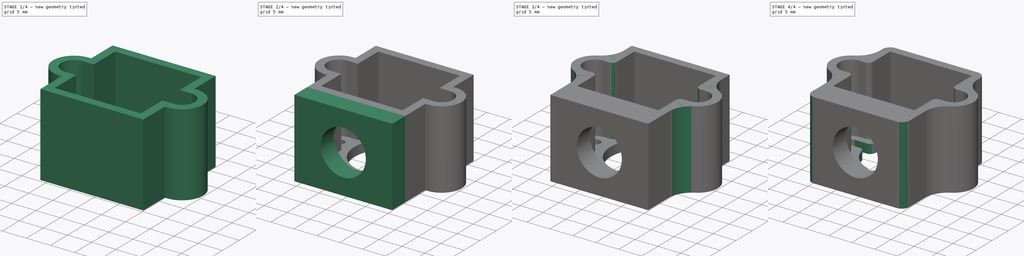
[diagram: build sequence overview — one tinted view per stage of 4, left to right]
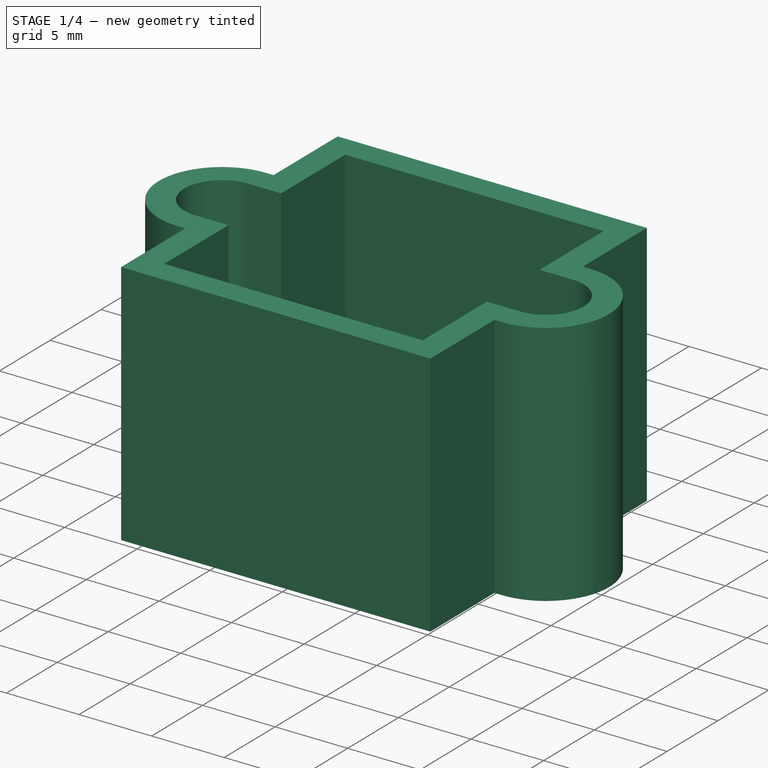
[diagram: stage 1 of 4 — iso view after this stage's code; geometry added in this stage tinted green]
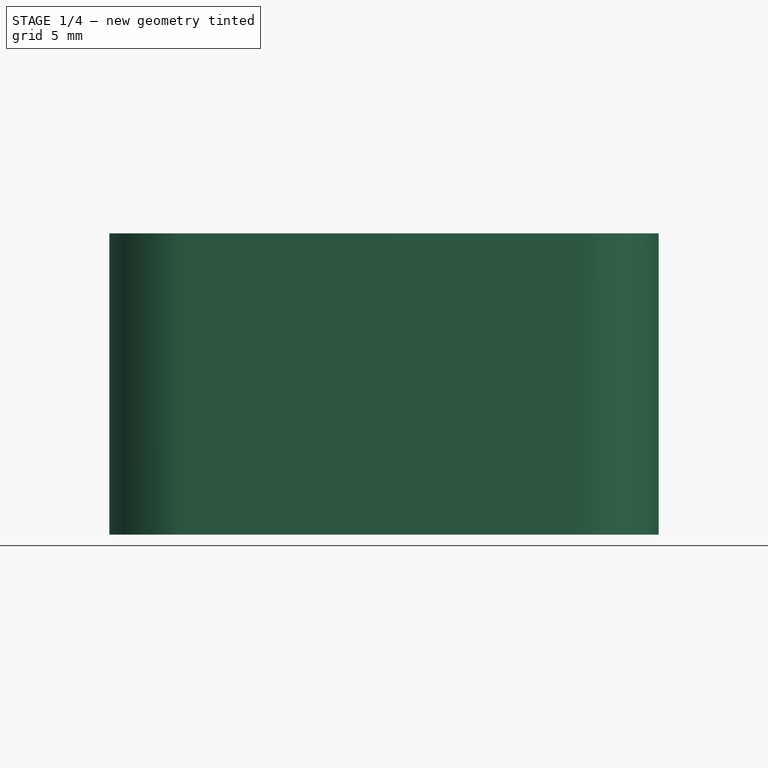
[diagram: stage 1 of 4 — front view after this stage's code; geometry added in this stage tinted green]
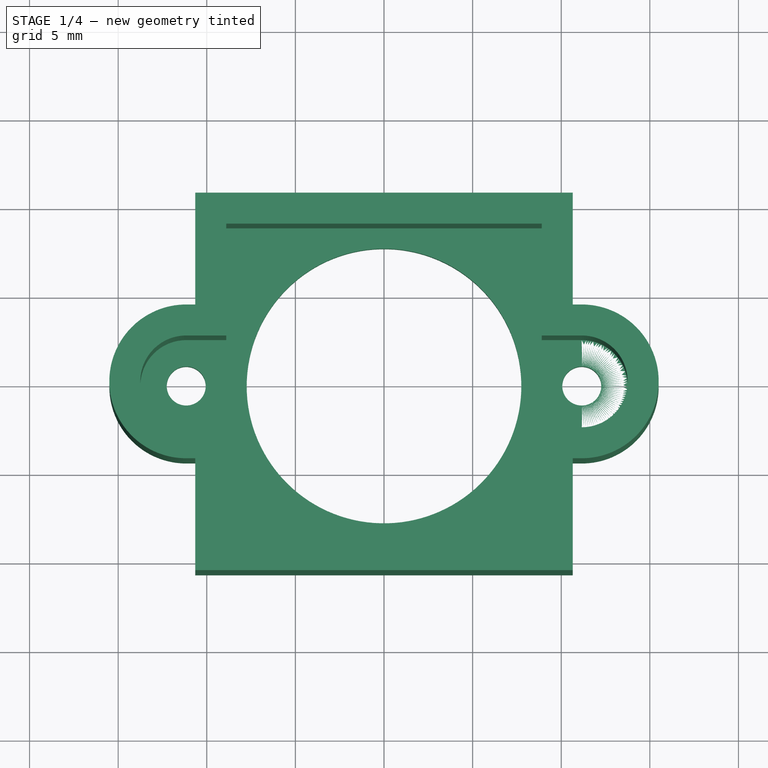
[diagram: stage 1 of 4 — top view after this stage's code; geometry added in this stage tinted green]
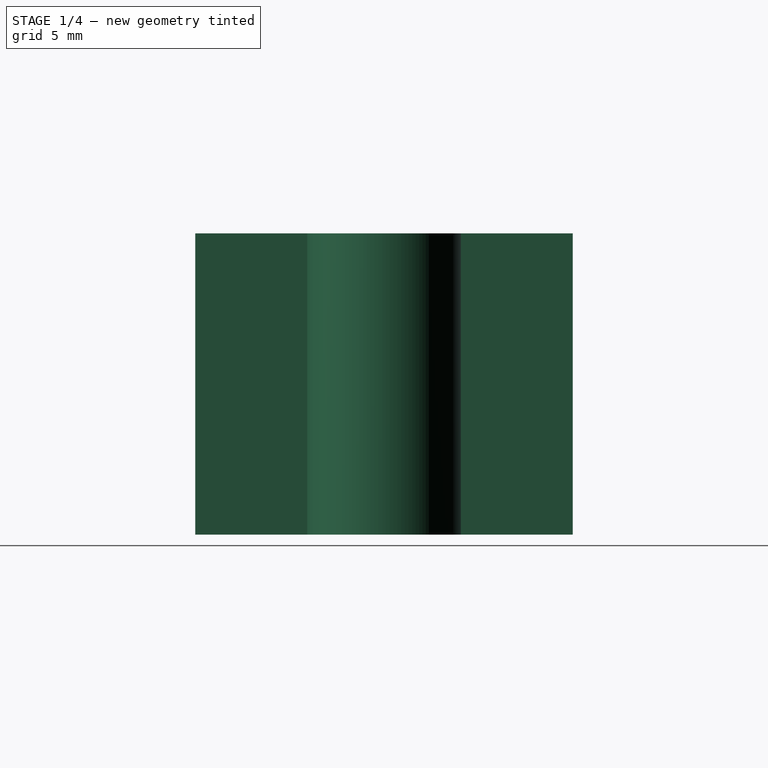
[diagram: stage 1 of 4 — right view after this stage's code; geometry added in this stage tinted green]
FCSTD DOCUMENT  (FreeCAD 0.20R29603 (Git))
Label: shield
License: All rights reserved
LicenseURL: http://en.wikipedia.org/wiki/All_rights_reserved
objects: Sketcher::SketchObject×6, PartDesign::Pocket×4, PartDesign::Fillet×4, PartDesign::Pad×3, PartDesign::Body×1
note: 29 computed .brp shape members not serialized (recipe doc carries the construction recipe); baked Part::Feature solids carry a one-line shape summary decoded from their .brp

FEATURE [Sketcher::SketchObject] Sketch
  FullyConstrained = true
  MapMode = 5
  Support = -> [XY_Plane]
  sketch-geometry (20):
    g0: LineSegment StartX=-8.65 StartY=8.65 StartZ=0 EndX=8.65 EndY=8.65 EndZ=0
    g1: LineSegment StartX=8.65 StartY=8.65 StartZ=0 EndX=8.65 EndY=-8.65 EndZ=0
    g2: LineSegment StartX=8.65 StartY=-8.65 StartZ=0 EndX=-8.65 EndY=-8.65 EndZ=0
    g3: LineSegment StartX=-8.65 StartY=-8.65 StartZ=0 EndX=-8.65 EndY=8.65 EndZ=0
    g4: ArcOfCircle CenterX=-11.16 CenterY=0 CenterZ=0 NormalX=0 NormalY=0 NormalZ=1 AngleXU=0 Radius=2.34 StartAngle=1.5708 EndAngle=4.71239
    g5: ArcOfCircle CenterX=11.16 CenterY=0 CenterZ=0 NormalX=0 NormalY=0 NormalZ=1 AngleXU=0 Radius=2.34 StartAngle=4.71239 EndAngle=7.85398
    g6: LineSegment StartX=-11.16 StartY=-2.34 StartZ=0 EndX=11.16 EndY=-2.34 EndZ=0
    g7: LineSegment StartX=11.16 StartY=2.34 StartZ=0 EndX=-11.16 EndY=2.34 EndZ=0
    g8: GeomPoint X=-13.5 Y=0 Z=0
    g9: LineSegment StartX=-11.16 StartY=2.34 StartZ=0 EndX=-8.65 EndY=2.34 EndZ=0
    g10: LineSegment StartX=-8.65 StartY=2.34 StartZ=0 EndX=-8.65 EndY=8.65 EndZ=0
    g11: LineSegment StartX=-11.16 StartY=-2.34 StartZ=0 EndX=-8.65 EndY=-2.34 EndZ=0
    g12: LineSegment StartX=-8.65 StartY=-2.34 StartZ=0 EndX=-8.65 EndY=-8.65 EndZ=0
    g13: LineSegment StartX=8.65 StartY=-8.65 StartZ=0 EndX=8.65 EndY=-2.34 EndZ=0
    g14: LineSegment StartX=8.65 StartY=-2.34 StartZ=0 EndX=11.16 EndY=-2.34 EndZ=0
    g15: LineSegment StartX=11.16 StartY=2.34 StartZ=0 EndX=8.65 EndY=2.34 EndZ=0
    g16: LineSegment StartX=8.65 StartY=2.34 StartZ=0 EndX=8.65 EndY=8.65 EndZ=0
    g17: Circle CenterX=0 CenterY=0 CenterZ=0 NormalX=0 NormalY=0 NormalZ=1 AngleXU=0 Radius=7.75
    g18: Circle CenterX=-11.16 CenterY=0 CenterZ=0 NormalX=0 NormalY=0 NormalZ=1 AngleXU=0 Radius=1.1
    g19: Circle CenterX=11.16 CenterY=0 CenterZ=0 NormalX=0 NormalY=0 NormalZ=1 AngleXU=0 Radius=1.1
  constraints (47):
    c: Coincident(g0,g1)
    c: Coincident(g1,g2)
    c: Coincident(g2,g3)
    c: Coincident(g3,g0)
    c: Horizontal(g2)
    c: Vertical(g1)
    c: Tangent(g4,g6) = -1.5708
    c: Tangent(g6,g5) = -1.5708
    c: Tangent(g5,g7) = -1.5708
    c: Tangent(g7,g4) = -1.5708
    c: Equal(g4,g5)
    c: PointOnObject(g4,g-1)
    c: DistanceY(g3,g3) = 17.3
    c: Equal(g0,g3)
    c: Symmetric(g0,g0,g-2)
    c: Symmetric(g2,g0,g-1)
    c: DistanceY(g4,g4) = 4.68
    c: PointOnObject(g8,g-1)
    c: PointOnObject(g8,g4)
    c: DistanceX(g8,g0) = 4.85
    c: Symmetric(g4,g5,g-2)
    c: Coincident(g9,g4)
    c: Coincident(g10,g9)
    c: Coincident(g11,g12)
    c: Coincident(g13,g14)
    c: Coincident(g15,g16)
    c: Coincident(g16,g0)
    c: Coincident(g15,g5)
    c: PointOnObject(g15,g7)
    c: PointOnObject(g15,g1)
    c: Coincident(g13,g2)
    c: Coincident(g14,g5)
    c: PointOnObject(g13,g1)
    c: PointOnObject(g13,g6)
    c: PointOnObject(g9,g3)
    c: PointOnObject(g9,g7)
    c: Coincident(g10,g0)
    c: Coincident(g11,g4)
    c: Coincident(g12,g2)
    c: PointOnObject(g11,g3)
    c: PointOnObject(g11,g6)
    c: Coincident(g17,g-1)
    c: Diameter(g17) = 15.5
    c: Coincident(g18,g4)
    c: Coincident(g19,g5)
    c: Equal(g19,g18)
    c: Diameter(g18) = 2.2
FEATURE [PartDesign::Pad] Pad
  Direction = (0,0,1)
  Length = 2
  Length2 = 10
  Profile = -> Sketch
  ReferenceAxis = -> Sketch [N_Axis]
  Type = 0
FEATURE [Sketcher::SketchObject] Sketch001
  ExternalGeometry = -> [Pad]
  FullyConstrained = true
  MapMode = 5
  Placement = pos=(0,0,0) rot=(1,0,0;3.14159rad)
  Support = -> [Pad]
  sketch-geometry (30):
    g0: LineSegment StartX=-10.65 StartY=10.65 StartZ=0 EndX=10.65 EndY=10.65 EndZ=0
    g1: LineSegment StartX=10.65 StartY=10.65 StartZ=0 EndX=10.65 EndY=-10.65 EndZ=0
    g2: LineSegment StartX=10.65 StartY=-10.65 StartZ=0 EndX=-10.65 EndY=-10.65 EndZ=0
    g3: LineSegment StartX=-10.65 StartY=-10.65 StartZ=0 EndX=-10.65 EndY=10.65 EndZ=0
    g4: ArcOfCircle CenterX=-11.16 CenterY=0 CenterZ=0 NormalX=0 NormalY=0 NormalZ=1 AngleXU=0 Radius=4.34 StartAngle=1.5708 EndAngle=4.71239
    g5: ArcOfCircle CenterX=11.16 CenterY=-2e-16 CenterZ=0 NormalX=0 NormalY=0 NormalZ=1 AngleXU=0 Radius=4.34 StartAngle=4.71239 EndAngle=7.85398
    g6: LineSegment StartX=-11.16 StartY=-4.34 StartZ=0 EndX=11.16 EndY=-4.34 EndZ=0
    g7: LineSegment StartX=11.16 StartY=4.34 StartZ=0 EndX=-11.16 EndY=4.34 EndZ=0
    g8: LineSegment StartX=-11.16 StartY=4.34 StartZ=0 EndX=-10.65 EndY=4.34 EndZ=0
    g9: LineSegment StartX=-10.65 StartY=4.34 StartZ=0 EndX=-10.65 EndY=10.65 EndZ=0
    g10: LineSegment StartX=-11.16 StartY=-4.34 StartZ=0 EndX=-10.65 EndY=-4.34 EndZ=0
    g11: LineSegment StartX=-10.65 StartY=-4.34 StartZ=0 EndX=-10.65 EndY=-10.65 EndZ=0
    g12: LineSegment StartX=10.65 StartY=-10.65 StartZ=0 EndX=10.65 EndY=-4.34 EndZ=0
    g13: LineSegment StartX=10.65 StartY=-4.34 StartZ=0 EndX=11.16 EndY=-4.34 EndZ=0
    g14: LineSegment StartX=11.16 StartY=4.34 StartZ=0 EndX=10.65 EndY=4.34 EndZ=0
    g15: LineSegment StartX=10.65 StartY=4.34 StartZ=0 EndX=10.65 EndY=10.65 EndZ=0
    g16: GeomPoint X=-13.5 Y=0 Z=0
    g17: GeomPoint X=-15.5 Y=0 Z=0
    g18: LineSegment StartX=8.65 StartY=8.65 StartZ=0 EndX=-8.65 EndY=8.65 EndZ=0
    g19: LineSegment StartX=-8.65 StartY=8.65 StartZ=0 EndX=-8.65 EndY=2.34 EndZ=0
    g20: LineSegment StartX=-8.65 StartY=-8.65 StartZ=0 EndX=8.65 EndY=-8.65 EndZ=0
    g21: LineSegment StartX=8.65 StartY=-8.65 StartZ=0 EndX=8.65 EndY=-2.34 EndZ=0
    g22: ArcOfCircle CenterX=-11.16 CenterY=0 CenterZ=0 NormalX=0 NormalY=0 NormalZ=1 AngleXU=0 Radius=2.34 StartAngle=1.5708 EndAngle=4.71239
    g23: LineSegment StartX=-11.16 StartY=-2.34 StartZ=0 EndX=-8.65 EndY=-2.34 EndZ=0
    g24: LineSegment StartX=11.16 StartY=2.34 StartZ=0 EndX=8.65 EndY=2.34 EndZ=0
    g25: LineSegment StartX=-8.65 StartY=2.34 StartZ=0 EndX=-11.16 EndY=2.34 EndZ=0
    g26: LineSegment StartX=-8.65 StartY=-2.34 StartZ=0 EndX=-8.65 EndY=-8.65 EndZ=0
    g27: LineSegment StartX=8.65 StartY=2.34 StartZ=0 EndX=8.65 EndY=8.65 EndZ=0
    g28: LineSegment StartX=8.65 StartY=-2.34 StartZ=0 EndX=11.16 EndY=-2.34 EndZ=0
    g29: ArcOfCircle CenterX=11.16 CenterY=-2e-16 CenterZ=0 NormalX=0 NormalY=0 NormalZ=1 AngleXU=0 Radius=2.34 StartAngle=4.71238 EndAngle=7.85399
  constraints (70):
    c: Coincident(g0,g1)
    c: Coincident(g1,g2)
    c: Coincident(g2,g3)
    c: Coincident(g3,g0)
    c: Horizontal(g2)
    c: Vertical(g3)
    c: Tangent(g4,g6) = -1.5708
    c: Tangent(g6,g5) = -1.5708
    c: Tangent(g5,g7) = -1.5708
    c: Tangent(g7,g4) = -1.5708
    c: Equal(g4,g5)
    c: Symmetric(g0,g0,g-2)
    c: Symmetric(g1,g0,g-1)
    c: Symmetric(g4,g5,g-2)
    c: Coincident(g8,g9)
    c: Coincident(g10,g11)
    c: Coincident(g12,g13)
    c: Coincident(g14,g15)
    c: Coincident(g13,g5)
    c: Coincident(g12,g2)
    c: PointOnObject(g12,g6)
    c: PointOnObject(g12,g1)
    c: Coincident(g14,g5)
    c: Coincident(g15,g0)
    c: PointOnObject(g14,g7)
    c: PointOnObject(g14,g1)
    c: Coincident(g8,g4)
    c: Coincident(g9,g0)
    c: PointOnObject(g8,g3)
    c: PointOnObject(g8,g7)
    c: Coincident(g10,g4)
    c: Coincident(g11,g2)
    c: PointOnObject(g10,g6)
    c: PointOnObject(g10,g3)
    c: Equal(g0,g3)
    c: DistanceY(g-5,g0) = 2
    c: PointOnObject(g17,g4)
    c: PointOnObject(g17,g-1)
    c: PointOnObject(g16,g-3)
    c: PointOnObject(g16,g-1)
    c: DistanceX(g17,g16) = 2
    c: Coincident(g-3,g4)
    c: Coincident(g18,g19)
    c: Coincident(g26,g20)
    c: Coincident(g20,g21)
    c: Coincident(g27,g18)
    c: Horizontal(g18)
    c: Horizontal(g20)
    c: Vertical(g19)
    c: Vertical(g21)
    c: Coincident(g18,g-5)
    c: Coincident(g26,g-6)
    c: Tangent(g22,g23) = -1.5708
    c: Coincident(g25,g22) = -1.5708
    c: Coincident(g4,g22)
    c: Equal(g22,g-3)
    c: Coincident(g19,g25)
    c: Coincident(g26,g23)
    c: Coincident(g27,g24)
    c: Coincident(g23,g-7)
    c: Coincident(g19,g-8)
    c: Coincident(g21,g-10)
    c: Coincident(g24,g-9)
    c: Horizontal(g25)
    c: Coincident(g24,g-4)
    c: Coincident(g28,g-4)
    c: Coincident(g28,g21)
    c: Coincident(g29,g28)
    c: Coincident(g29,g24)
    c: Equal(g-4,g29)
FEATURE [PartDesign::Pad] Pad001
  BaseFeature = -> Pad
  Direction = (0,0,-1)
  Length = 17
  Length2 = 10
  Profile = -> Sketch001
  ReferenceAxis = -> Sketch001 [N_Axis]
  Reversed = true
  Type = 0
FEATURE [Sketcher::SketchObject] Sketch002
  ExternalGeometry = -> [Pad001]
  FullyConstrained = true
  MapMode = 5
  Placement = pos=(0,0,17) rot=(0,0,1;0rad)
  Support = -> [Pad001]
  sketch-geometry (16):
    g0: LineSegment StartX=8.9 StartY=8.9 StartZ=0 EndX=-8.9 EndY=8.9 EndZ=0
    g1: LineSegment StartX=-8.9 StartY=8.9 StartZ=0 EndX=-8.9 EndY=-8.9 EndZ=0
    g2: LineSegment StartX=-8.9 StartY=-8.9 StartZ=0 EndX=8.9 EndY=-8.9 EndZ=0
    g3: LineSegment StartX=8.9 StartY=-8.9 StartZ=0 EndX=8.9 EndY=8.9 EndZ=0
    g4: LineSegment StartX=-8.9 StartY=8.9 StartZ=0 EndX=-8.9 EndY=2.59 EndZ=0
    g5: LineSegment StartX=-8.9 StartY=2.59 StartZ=0 EndX=-11.16 EndY=2.59 EndZ=0
    g6: LineSegment StartX=-8.9 StartY=-8.9 StartZ=0 EndX=-8.9 EndY=-2.59 EndZ=0
    g7: LineSegment StartX=-8.9 StartY=-2.59 StartZ=0 EndX=-11.16 EndY=-2.59 EndZ=0
    g8: LineSegment StartX=8.9 StartY=-8.9 StartZ=0 EndX=8.9 EndY=-2.59 EndZ=0
    g9: LineSegment StartX=8.9 StartY=-2.59 StartZ=0 EndX=11.16 EndY=-2.59 EndZ=0
    g10: LineSegment StartX=8.9 StartY=8.9 StartZ=0 EndX=8.9 EndY=2.59 EndZ=0
    g11: LineSegment StartX=8.9 StartY=2.59 StartZ=0 EndX=11.16 EndY=2.59 EndZ=0
    g12: ArcOfCircle CenterX=11.16 CenterY=-1e-16 CenterZ=0 NormalX=0 NormalY=0 NormalZ=1 AngleXU=0 Radius=2.59 StartAngle=4.71239 EndAngle=7.85398
    g13: ArcOfCircle CenterX=-11.16 CenterY=0 CenterZ=0 NormalX=0 NormalY=0 NormalZ=1 AngleXU=0 Radius=2.59 StartAngle=1.5708 EndAngle=4.71239
    g14: GeomPoint X=-13.75 Y=0 Z=0
    g15: GeomPoint X=-13.5 Y=0 Z=0
  constraints (41):
    c: Coincident(g0,g1)
    c: Coincident(g1,g2)
    c: Coincident(g2,g3)
    c: Coincident(g3,g0)
    c: Horizontal(g2)
    c: Vertical(g3)
    c: Symmetric(g0,g0,g-2)
    c: Symmetric(g1,g0,g-1)
    c: DistanceY(g-3,g0) = 0.25
    c: Equal(g1,g0)
    c: Coincident(g0,g4)
    c: Coincident(g4,g5)
    c: Coincident(g2,g6)
    c: Coincident(g6,g7)
    c: Coincident(g2,g8)
    c: Coincident(g8,g9)
    c: Coincident(g0,g10)
    c: Coincident(g11,g10)
    c: PointOnObject(g4,g1)
    c: PointOnObject(g10,g3)
    c: PointOnObject(g8,g3)
    c: PointOnObject(g6,g1)
    c: Equal(g6,g8)
    c: Equal(g8,g4)
    c: Equal(g4,g10)
    c: Equal(g11,g5)
    c: Equal(g5,g7)
    c: Equal(g7,g9)
    c: Horizontal(g11)
    c: Horizontal(g9)
    c: Horizontal(g5)
    c: Coincident(g13,g7)
    c: Coincident(g9,g12)
    c: Tangent(g12,g11) = 1.5708
    c: Tangent(g13,g5) = -1.5708
    c: Coincident(g13,g-7)
    c: PointOnObject(g14,g-1)
    c: PointOnObject(g14,g13)
    c: PointOnObject(g15,g-8)
    c: PointOnObject(g15,g-1)
    c: DistanceX(g14,g15) = 0.25
FEATURE [PartDesign::Pocket] Pocket
  BaseFeature = -> Pad001
  Direction = (0,0,-1)
  Length = 0
  Length2 = 5
  Profile = -> Sketch002
  ReferenceAxis = -> Sketch002 [N_Axis]
  Type = 3
  UpToFace = -> Pad001 [Face3]
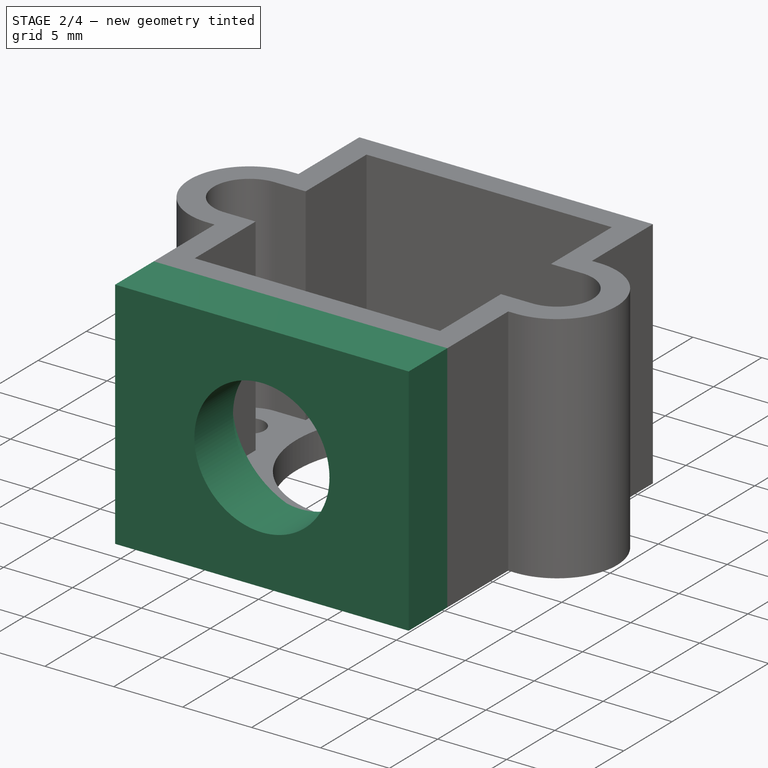
[diagram: stage 2 of 4 — iso view after this stage's code; geometry added in this stage tinted green]
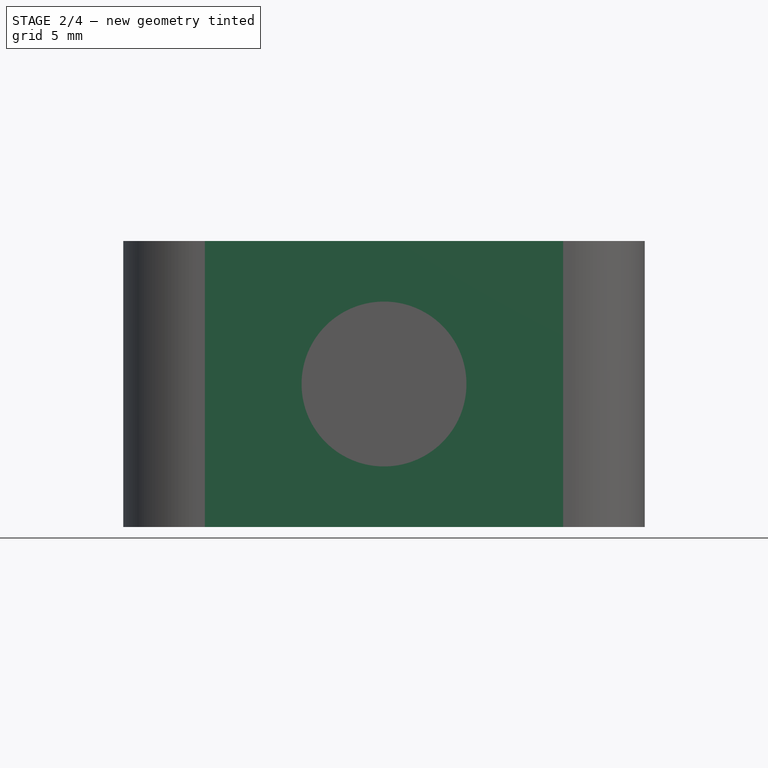
[diagram: stage 2 of 4 — front view after this stage's code; geometry added in this stage tinted green]
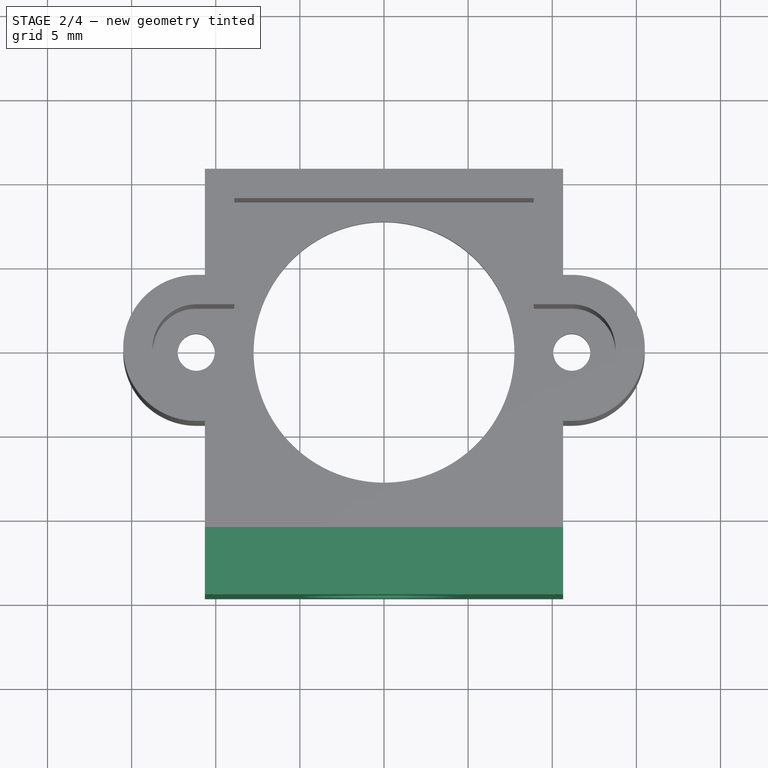
[diagram: stage 2 of 4 — top view after this stage's code; geometry added in this stage tinted green]
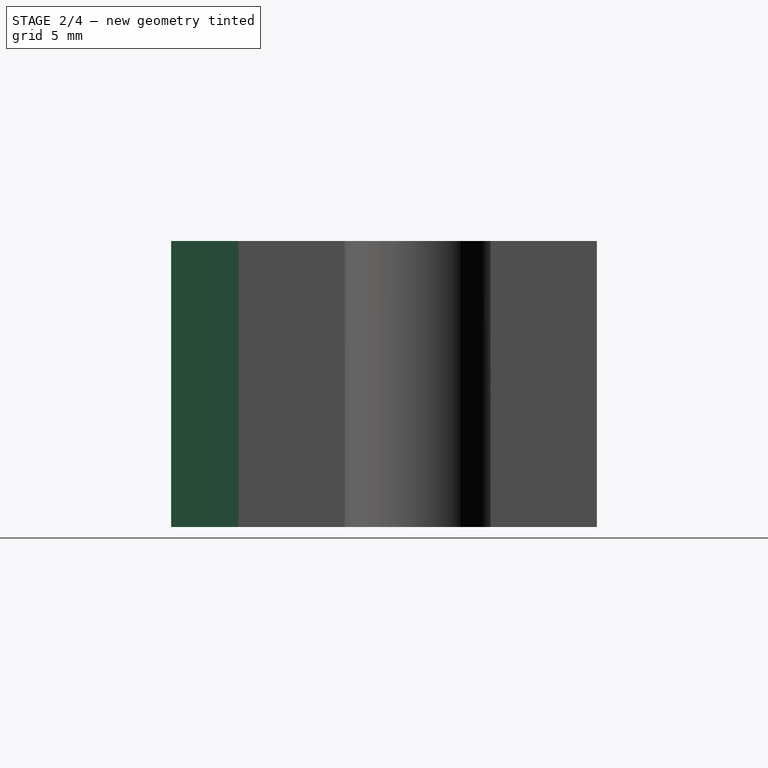
[diagram: stage 2 of 4 — right view after this stage's code; geometry added in this stage tinted green]
FEATURE [PartDesign::Pad] Pad002
  BaseFeature = -> Pocket
  Direction = (0,-1,0)
  Length = 4
  Length2 = 10
  Profile = -> Pocket [Face25]
  Type = 0
FEATURE [Sketcher::SketchObject] Sketch004
  ExternalGeometry = -> [Pad002]
  FullyConstrained = true
  MapMode = 5
  Placement = pos=(0,-8.9,0) rot=(0,0.707107,0.707107;3.14159rad)
  Support = -> [Pad002]
  sketch-geometry (3):
    g0: Circle CenterX=-4e-16 CenterY=8.5 CenterZ=0 NormalX=0 NormalY=0 NormalZ=1 AngleXU=0 Radius=4.9
    g1: LineSegment StartX=10.65 StartY=17 StartZ=0 EndX=-10.65 EndY=0 EndZ=0
    g2: LineSegment StartX=-10.65 StartY=17 StartZ=0 EndX=10.65 EndY=0 EndZ=0
  constraints (7):
    c: Coincident(g1,g-3)
    c: Coincident(g1,g-4)
    c: Coincident(g2,g-3)
    c: Coincident(g2,g-4)
    c: PointOnObject(g0,g1)
    c: PointOnObject(g0,g2)
    c: Diameter(g0) = 9.8
FEATURE [PartDesign::Pocket] Pocket001
  BaseFeature = -> Pad002
  Direction = (0,-1,2e-16)
  Length = 0
  Length2 = 5
  Profile = -> Sketch004
  ReferenceAxis = -> Sketch004 [N_Axis]
  Type = 3
  UpToFace = -> Pad002 [Face36]
FEATURE [Sketcher::SketchObject] Sketch005
  ExternalGeometry = -> [Pocket001]
  FullyConstrained = true
  MapMode = 5
  Placement = pos=(0,-8.9,0) rot=(0,0.707107,0.707107;3.14159rad)
  Support = -> [Pocket001]
  sketch-geometry (1):
    g0: Circle CenterX=-4e-16 CenterY=8.5 CenterZ=0 NormalX=0 NormalY=0 NormalZ=1 AngleXU=0 Radius=6.2
  constraints (2):
    c: Coincident(g0,g-3)
    c: Diameter(g0) = 12.4
FEATURE [PartDesign::Pocket] Pocket002
  BaseFeature = -> Pocket001
  Direction = (0,-1,2e-16)
  Length = 1.75
  Length2 = 5
  Offset = 1.45
  Profile = -> Sketch005
  ReferenceAxis = -> Sketch005 [N_Axis]
  Type = 0
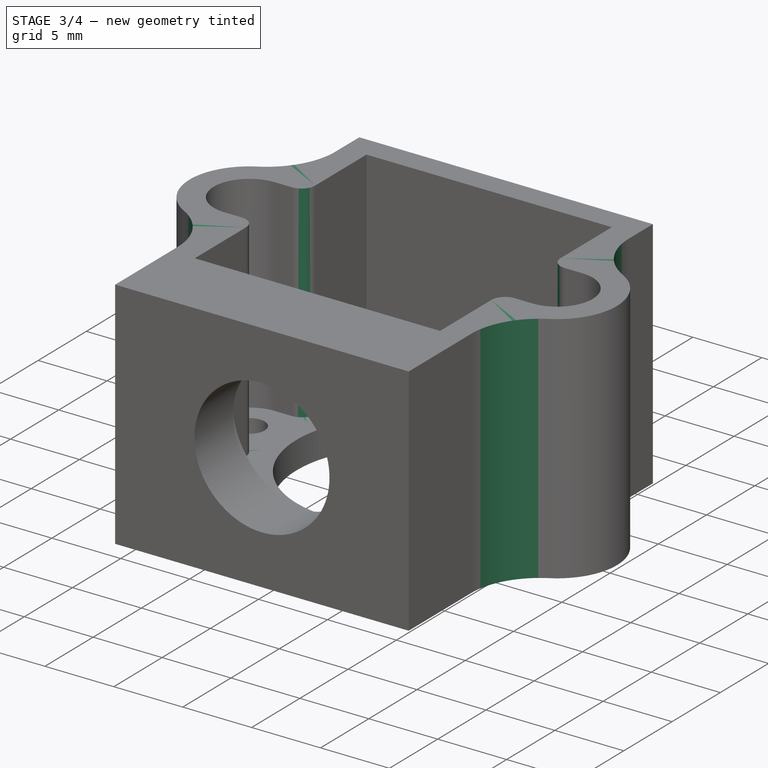
[diagram: stage 3 of 4 — iso view after this stage's code; geometry added in this stage tinted green]
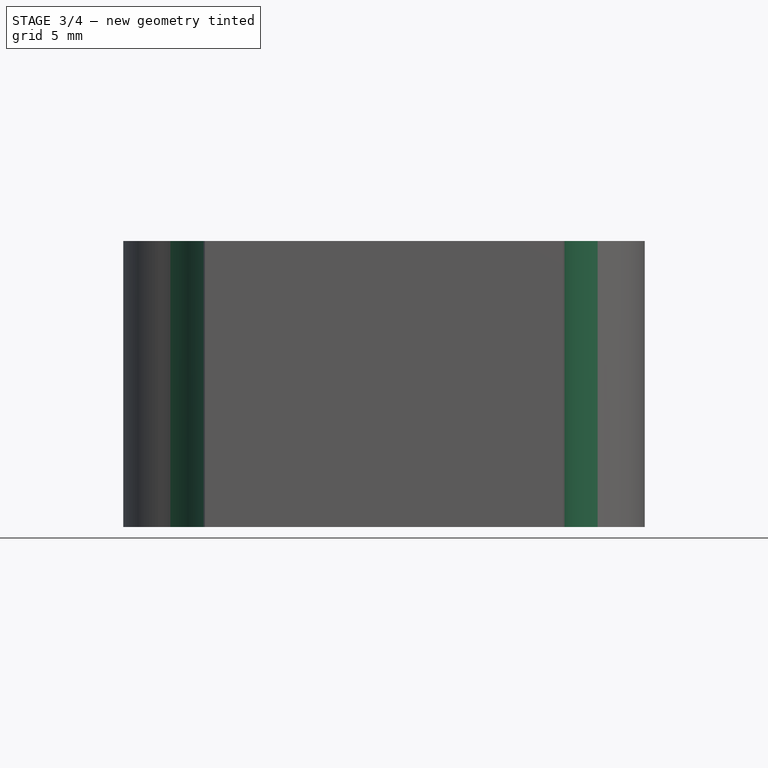
[diagram: stage 3 of 4 — front view after this stage's code; geometry added in this stage tinted green]
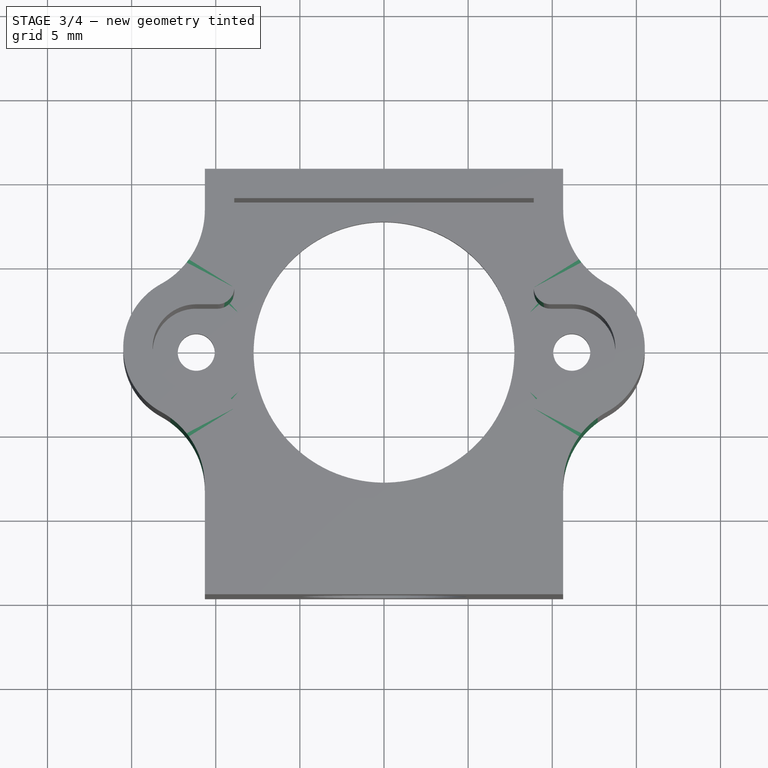
[diagram: stage 3 of 4 — top view after this stage's code; geometry added in this stage tinted green]
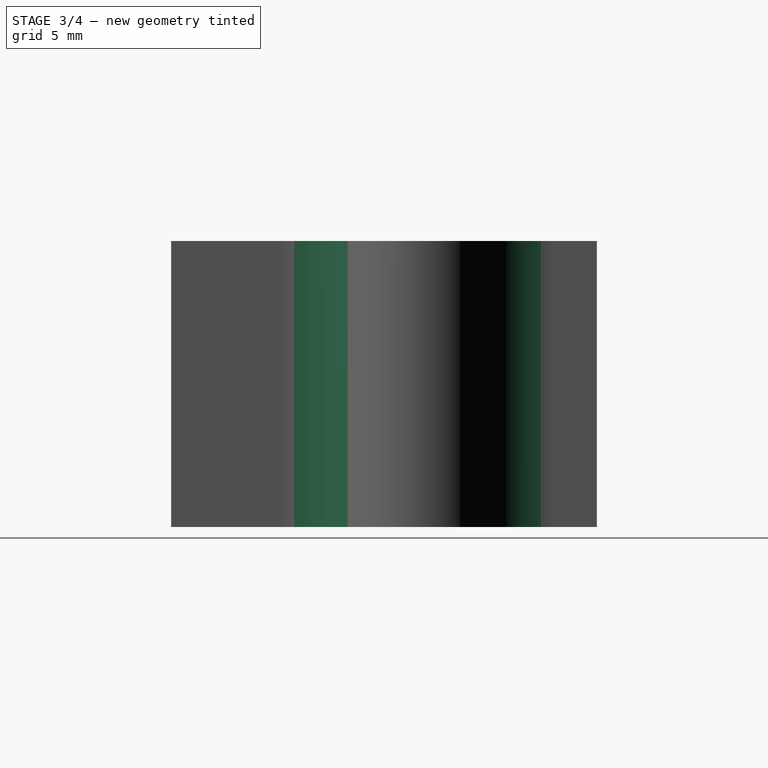
[diagram: stage 3 of 4 — right view after this stage's code; geometry added in this stage tinted green]
FEATURE [PartDesign::Fillet] Fillet
  Base = -> Pocket002 [Edge52,Edge40,Edge50,Edge38]
  BaseFeature = -> Pocket002
  Radius = 1
  SupportTransform = false
  UseAllEdges = false
FEATURE [PartDesign::Fillet] Fillet001
  Base = -> Fillet [Edge86,Edge85,Edge92,Edge88,Edge108,Edge106,Edge99,Edge104]
  BaseFeature = -> Fillet
  Radius = 5
  SupportTransform = false
  UseAllEdges = false
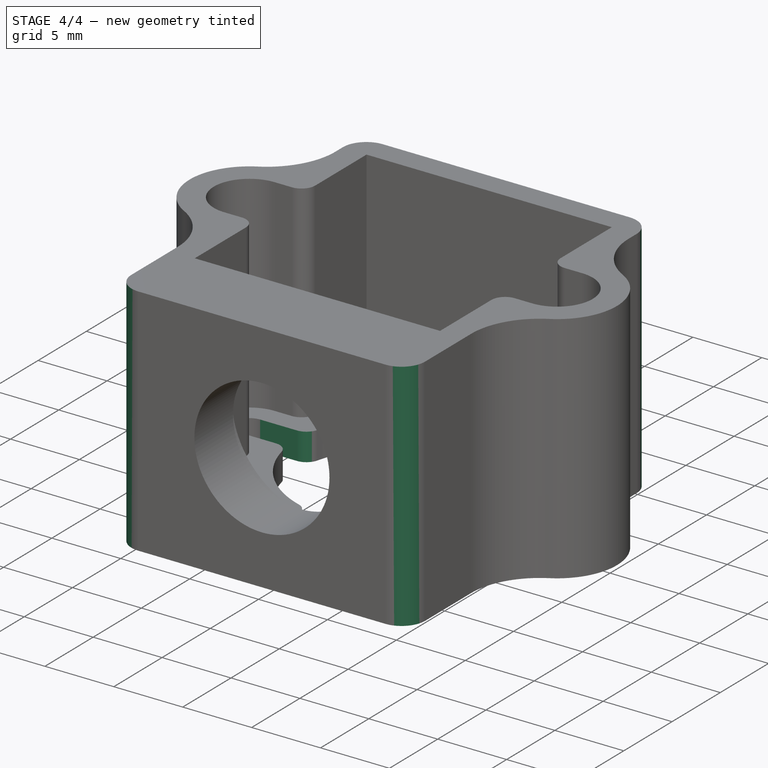
[diagram: stage 4 of 4 — iso view after this stage's code; geometry added in this stage tinted green]
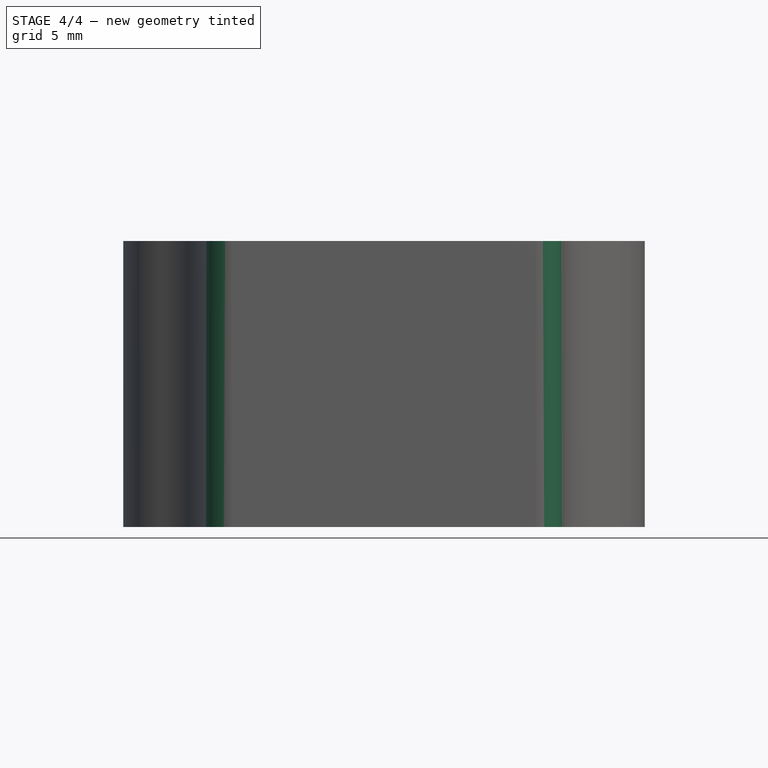
[diagram: stage 4 of 4 — front view after this stage's code; geometry added in this stage tinted green]
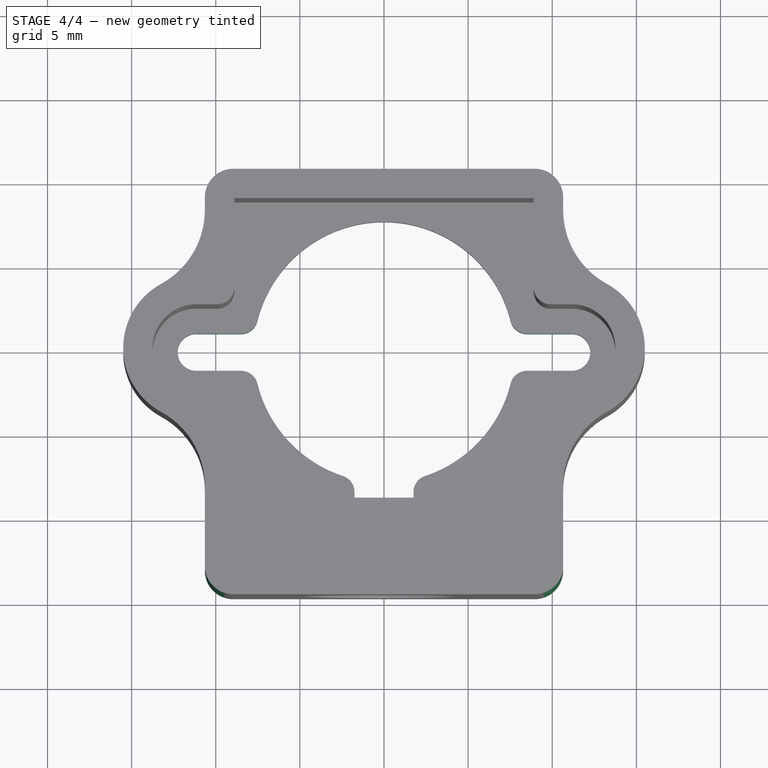
[diagram: stage 4 of 4 — top view after this stage's code; geometry added in this stage tinted green]
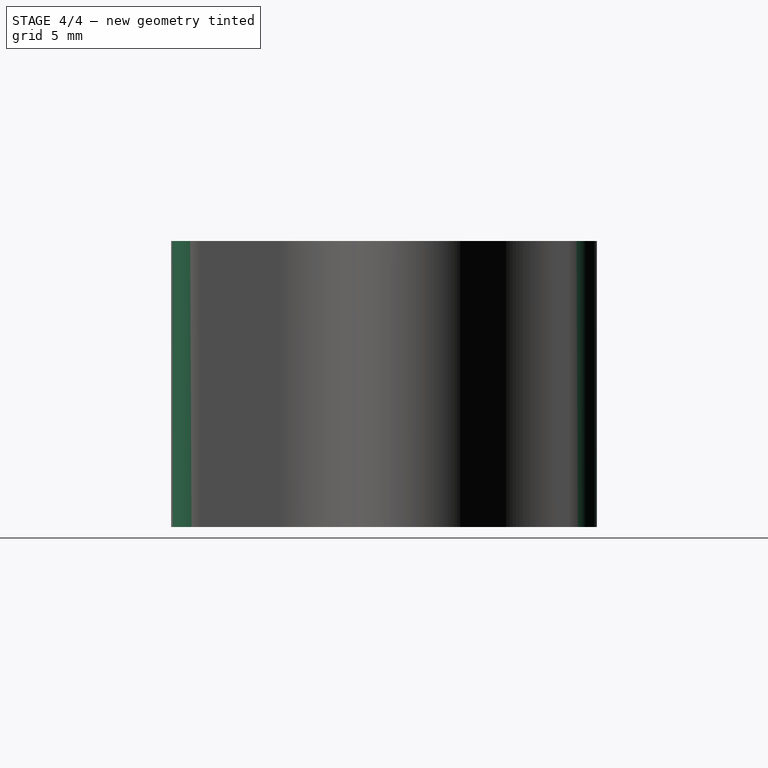
[diagram: stage 4 of 4 — right view after this stage's code; geometry added in this stage tinted green]
FEATURE [PartDesign::Fillet] Fillet002
  Base = -> Fillet001 [Edge39,Edge43,Edge102,Edge104]
  BaseFeature = -> Fillet001
  Radius = 1.7
  SupportTransform = false
  UseAllEdges = false
FEATURE [Sketcher::SketchObject] Sketch006
  ExternalGeometry = -> [Fillet002]
  FullyConstrained = true
  MapMode = 5
  Placement = pos=(0,0,0) rot=(1,0,0;3.14159rad)
  Support = -> [Fillet002]
  sketch-geometry (8):
    g0: LineSegment StartX=-1.75 StartY=8.9 StartZ=0 EndX=1.75 EndY=8.9 EndZ=0
    g1: LineSegment StartX=1.75 StartY=8.9 StartZ=0 EndX=1.75 EndY=7.54983 EndZ=0
    g2: LineSegment StartX=1.75 StartY=7.54983 StartZ=0 EndX=-1.75 EndY=7.54983 EndZ=0
    g3: LineSegment StartX=-1.75 StartY=7.54983 StartZ=0 EndX=-1.75 EndY=8.9 EndZ=0
    g4: ArcOfCircle CenterX=-11.16 CenterY=0 CenterZ=0 NormalX=0 NormalY=0 NormalZ=1 AngleXU=0 Radius=1.1 StartAngle=1.5708 EndAngle=4.71239
    g5: ArcOfCircle CenterX=11.16 CenterY=0 CenterZ=0 NormalX=0 NormalY=0 NormalZ=1 AngleXU=0 Radius=1.1 StartAngle=4.71239 EndAngle=7.85398
    g6: LineSegment StartX=-11.16 StartY=-1.1 StartZ=0 EndX=11.16 EndY=-1.1 EndZ=0
    g7: LineSegment StartX=11.16 StartY=1.1 StartZ=0 EndX=-11.16 EndY=1.1 EndZ=0
  constraints (19):
    c: Coincident(g0,g1)
    c: Coincident(g1,g2)
    c: Coincident(g2,g3)
    c: Horizontal(g2)
    c: Vertical(g1)
    c: Vertical(g3)
    c: Symmetric(g0,g0,g-2)
    c: PointOnObject(g1,g-3)
    c: Coincident(g3,g0)
    c: DistanceX(g2,g2) = 3.5
    c: PointOnObject(g0,g-4)
    c: Tangent(g4,g6) = -1.5708
    c: Tangent(g6,g5) = -1.5708
    c: Tangent(g5,g7) = -1.5708
    c: Tangent(g7,g4) = -1.5708
    c: Equal(g4,g5)
    c: Coincident(g4,g-6)
    c: Coincident(g5,g-5)
    c: Equal(g5,g-5)
FEATURE [PartDesign::Pocket] Pocket003
  BaseFeature = -> Fillet002
  Direction = (0,0,1)
  Length = 5
  Length2 = 5
  Profile = -> Sketch006
  ReferenceAxis = -> Sketch006 [N_Axis]
  Type = 1
FEATURE [PartDesign::Fillet] Fillet003
  Base = -> Pocket003 [Edge186,Edge182,Edge187,Edge190,Edge166,Edge168]
  BaseFeature = -> Pocket003
  Radius = 1
  SupportTransform = false
  UseAllEdges = false
FEATURE [PartDesign::Body] Body
  Group = -> [Sketch,Pad,Sketch001,Pad001,Sketch002,Pocket,Pad002,Sketch004,Pocket001,Sketch005,Pocket002,Fillet,Fillet001,Fillet002,Sketch006,Pocket003,Fillet003]
  Origin = -> Origin
  Tip = -> Fillet003
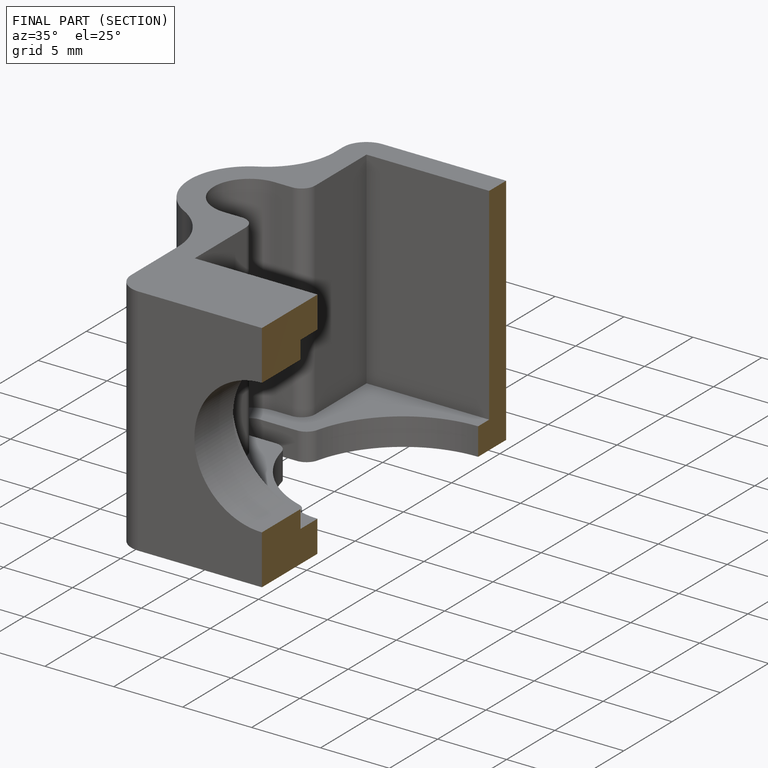
[diagram: finished part — half-section view (interior)]
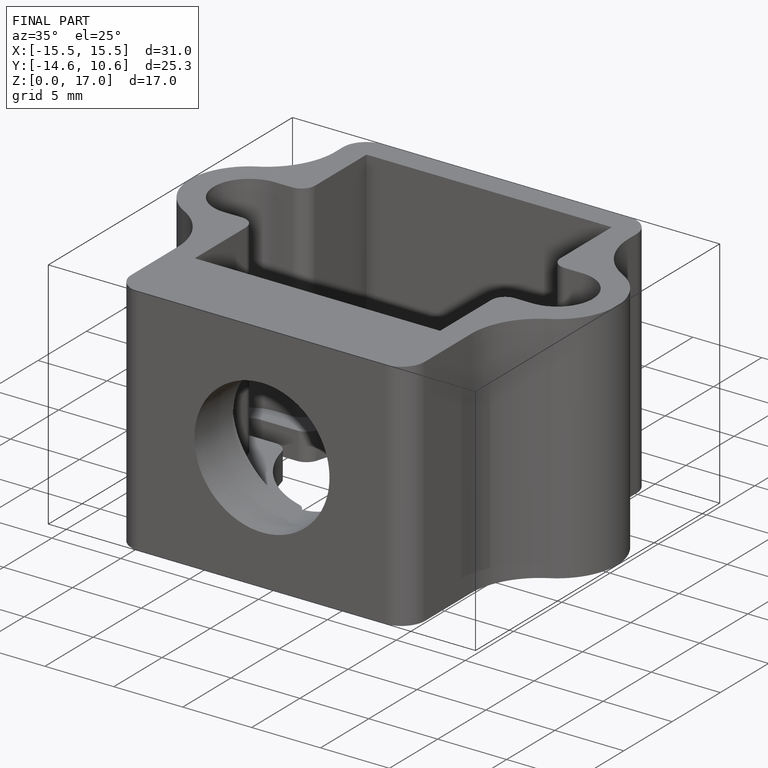
[diagram: finished part — iso view with bounding-box wireframe]
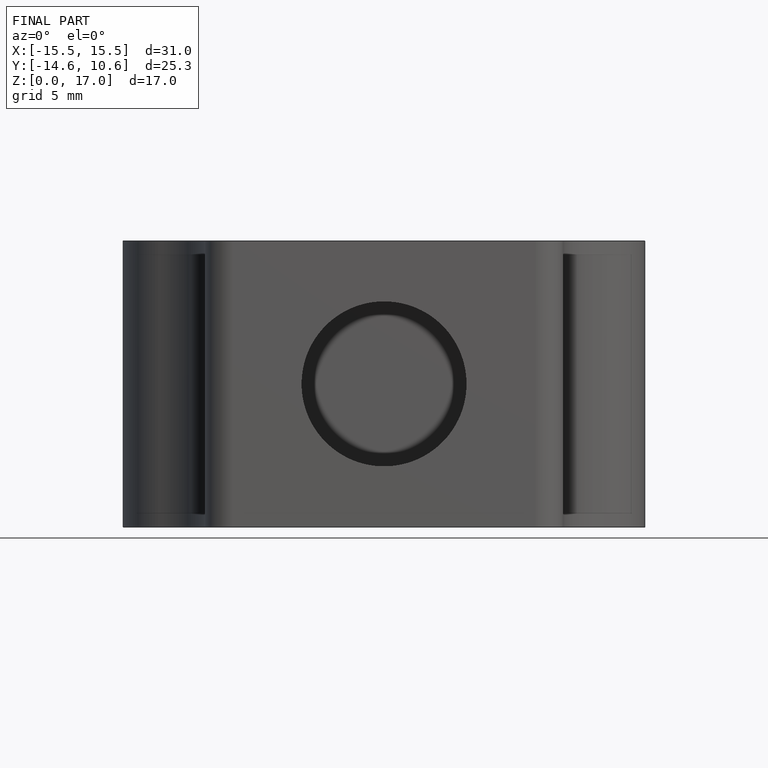
[diagram: finished part — front view with bounding-box wireframe]
